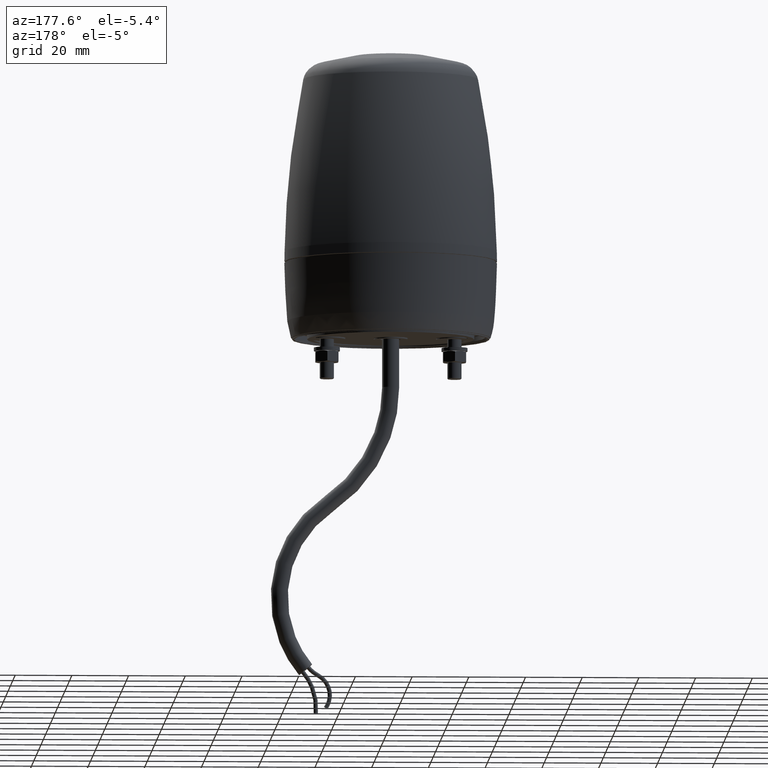
[diagram: clean part render]
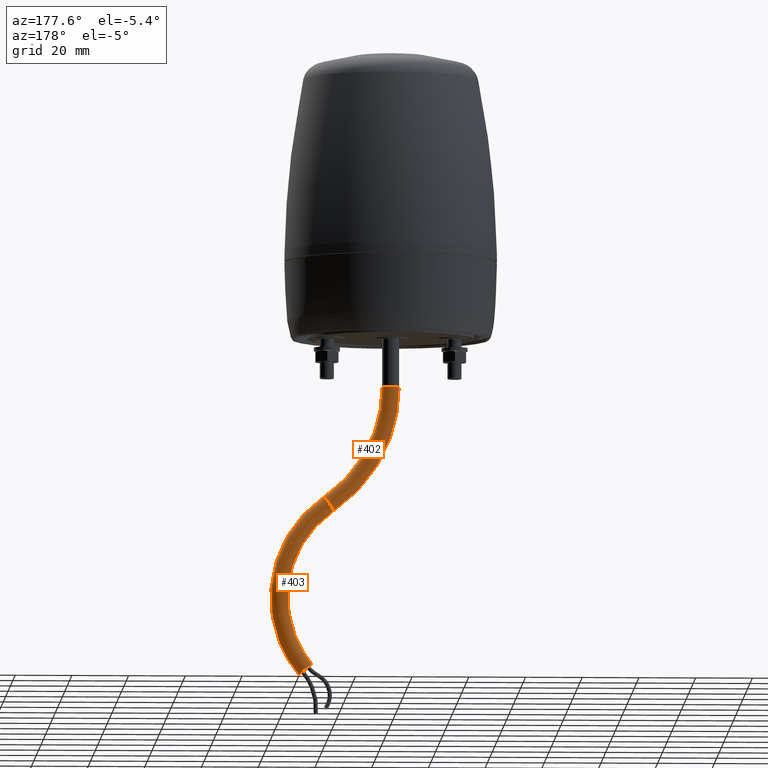
[diagram: same view with one multi-face feature highlighted, each face labeled with its STEP entity id]
A machine part, auxiliary view. The highlighted faces form ONE feature: a constant-radius fillet chain: 2 tangent blend faces with common blend radius 3 mm. The faces share edges in the B-rep.
Their STEP definitions:
[1] entity #403 (Torus):
#120=TOROIDAL_SURFACE('',#2880,40.,3.);
#403=ADVANCED_FACE('',(#1021,#1022),#120,.T.);
#1021=FACE_BOUND('',#1188,.T.);
#1022=FACE_BOUND('',#1189,.T.);
#1188=EDGE_LOOP('',(#1528));
#1189=EDGE_LOOP('',(#1529));
#1528=ORIENTED_EDGE('',*,*,#2422,.F.);
#1529=ORIENTED_EDGE('',*,*,#2418,.T.);
#2150=VERTEX_POINT('',#4086);
#2154=VERTEX_POINT('',#4096);
#2418=EDGE_CURVE('',#2150,#2150,#2726,.T.);
#2422=EDGE_CURVE('',#2154,#2154,#2730,.T.);
#2726=CIRCLE('',#2872,3.);
#2730=CIRCLE('',#2878,3.);
#2872=AXIS2_PLACEMENT_3D('',#4085,#3240,#3241);
#2878=AXIS2_PLACEMENT_3D('',#4095,#3252,#3253);
#2880=AXIS2_PLACEMENT_3D('',#4098,#3256,#3257);
#3240=DIRECTION('',(0.64100700555141,0.,0.76753502775705));
#3241=DIRECTION('',(-0.76753502775705,0.,0.64100700555141));
#3252=DIRECTION('',(-0.826219108643818,0.,0.563348901225355));
#3253=DIRECTION('',(-0.563348901225355,0.,-0.826219108643819));
#3256=DIRECTION('',(0.,1.,0.));
#3257=DIRECTION('',(-1.,0.,0.));
#4085=CARTESIAN_POINT('',(30.0196824600001,-0.0196824600000056,-124.047707965518));
#4086=CARTESIAN_POINT('',(27.7170773767289,-0.0196824600000056,-122.124686948864));
#4095=CARTESIAN_POINT('',(21.8522373987323,-0.0196824600000056,-65.3586633977093));
#4096=CARTESIAN_POINT('',(20.1621906950562,-0.0196824600000056,-67.8373207236407));
#4098=CARTESIAN_POINT('',(-0.681718650281931,-0.0196824600000056,-98.4074277434619));
[2] entity #402 (Torus):
#119=TOROIDAL_SURFACE('',#2879,50.,3.);
#402=ADVANCED_FACE('',(#1019,#1020),#119,.T.);
#1019=FACE_BOUND('',#1186,.T.);
#1020=FACE_BOUND('',#1187,.T.);
#1186=EDGE_LOOP('',(#1526));
#1187=EDGE_LOOP('',(#1527));
#1526=ORIENTED_EDGE('',*,*,#2422,.T.);
#1527=ORIENTED_EDGE('',*,*,#2420,.F.);
#2152=VERTEX_POINT('',#4091);
#2154=VERTEX_POINT('',#4096);
#2420=EDGE_CURVE('',#2152,#2152,#2728,.T.);
#2422=EDGE_CURVE('',#2154,#2154,#2730,.T.);
#2728=CIRCLE('',#2875,3.);
#2730=CIRCLE('',#2878,3.);
#2875=AXIS2_PLACEMENT_3D('',#4090,#3246,#3247);
#2878=AXIS2_PLACEMENT_3D('',#4095,#3252,#3253);
#2879=AXIS2_PLACEMENT_3D('',#4097,#3254,#3255);
#3246=DIRECTION('',(1.11022302462516E-016,0.,1.));
#3247=DIRECTION('',(-1.,0.,0.));
#3252=DIRECTION('',(-0.826219108643818,0.,0.563348901225355));
#3253=DIRECTION('',(-0.563348901225355,0.,-0.826219108643819));
#3254=DIRECTION('',(0.,1.,0.));
#3255=DIRECTION('',(-1.,0.,0.));
#4090=CARTESIAN_POINT('',(0.019682460000027,-0.0196824600000056,-24.0477079655183));
#4091=CARTESIAN_POINT('',(-2.98031753999997,-0.0196824600000056,-24.0477079655183));
#4095=CARTESIAN_POINT('',(21.8522373987323,-0.0196824600000056,-65.3586633977093));
#4096=CARTESIAN_POINT('',(20.1621906950562,-0.0196824600000056,-67.8373207236407));
#4097=CARTESIAN_POINT('',(50.0196824600001,-0.0196824600000056,-24.0477079655183));